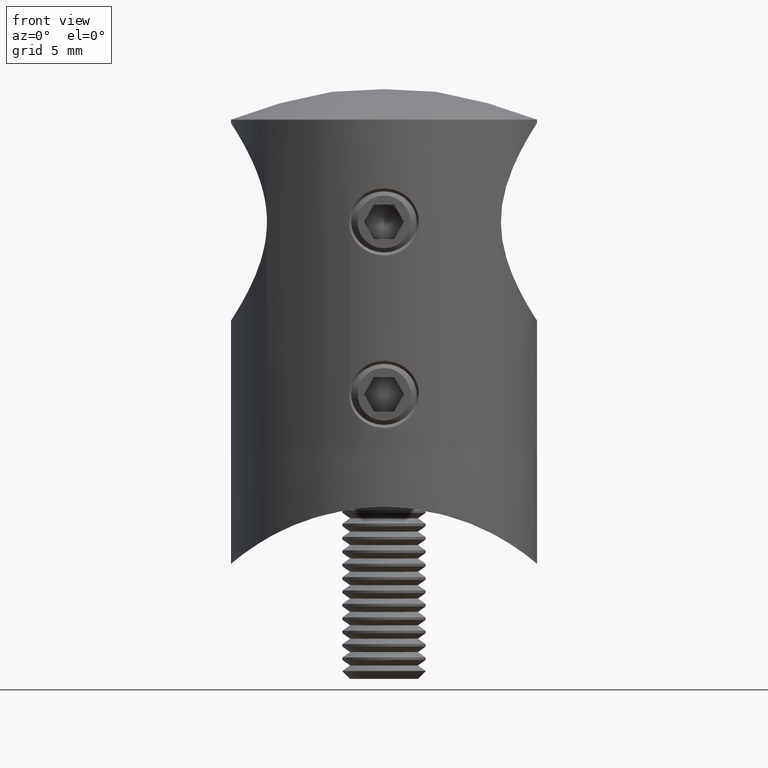
[diagram: clean part render]
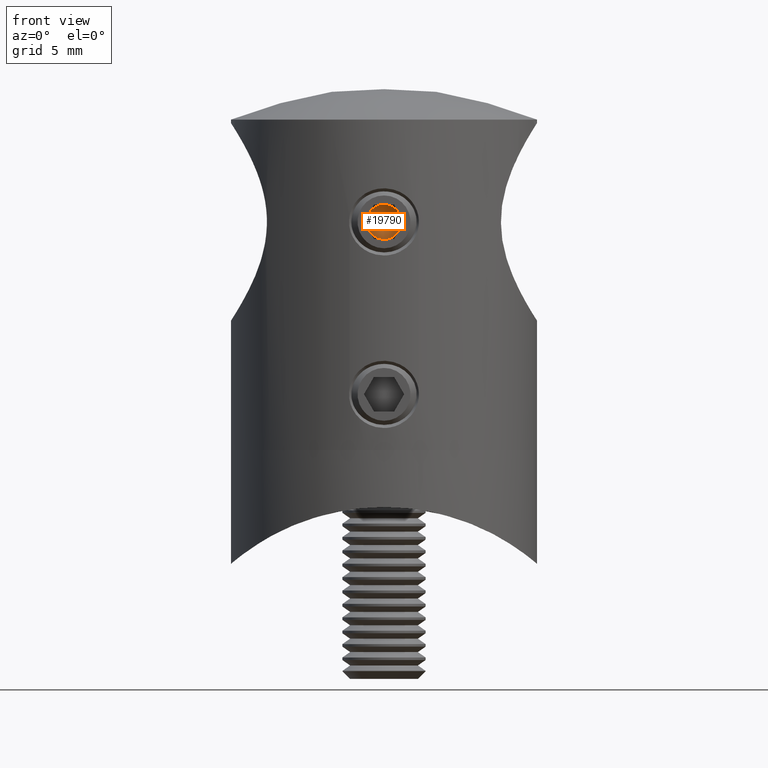
[diagram: same view with one face highlighted and labeled with its STEP entity id]
A machine part, front view. The second image highlights one B-rep face of the part: STEP entity #19790.
In plain terms, the highlighted conical surface has half-angle 59 deg.
Its self-contained STEP definition (entity closure, byte-faithful):
#340 = CARTESIAN_POINT ( 'NONE',  ( 2.000000000000000000, 0.0000000000000000000, 6.209410300080172700E-015 ) ) ;
#670 = VERTEX_POINT ( 'NONE', #22903 ) ;
#952 = VERTEX_POINT ( 'NONE', #16912 ) ;
#1208 = CARTESIAN_POINT ( 'NONE',  ( 2.000000000000001300, 0.0000000000000000000, 5.755839955992561400E-015 ) ) ;
#1278 = CARTESIAN_POINT ( 'NONE',  ( 2.000000000000000000, 0.0000000000000000000, 6.209410300080172700E-015 ) ) ;
#2049 = CARTESIAN_POINT ( 'NONE',  ( 2.000000000000000000, 0.0000000000000000000, 6.209410300080172700E-015 ) ) ;
#2118 = DIRECTION ( 'NONE',  ( -1.000000000000000000, -0.0000000000000000000, 0.0000000000000000000 ) ) ;
#2362 = VERTEX_POINT ( 'NONE', #7563 ) ;
#2527 = CONICAL_SURFACE ( 'NONE', #20865, 1.250000000000005300, 1.029744258676652800 ) ;
#3683 = CARTESIAN_POINT ( 'NONE',  ( 2.000000000000001300, 0.0000000000000000000, 5.755839955992561400E-015 ) ) ;
#3757 = DIRECTION ( 'NONE',  ( 1.000000000000000000, -0.0000000000000000000, 2.180260461768213300E-016 ) ) ;
#3867 = AXIS2_PLACEMENT_3D ( 'NONE', #1278, #10420, #8463 ) ;
#3913 = CARTESIAN_POINT ( 'NONE',  ( 2.000000000000000000, 0.0000000000000000000, 1.250000000000000200 ) ) ;
#3922 = CIRCLE ( 'NONE', #13006, 1.250000000000005300 ) ;
#4237 = ORIENTED_EDGE ( 'NONE', *, *, #4514, .F. ) ;
#4514 = EDGE_CURVE ( 'NONE', #952, #10585, #20561, .T. ) ;
#4644 = VERTEX_POINT ( 'NONE', #14393 ) ;
#5083 = DIRECTION ( 'NONE',  ( 1.000000000000000000, -0.0000000000000000000, 2.180260461768213300E-016 ) ) ;
#5662 = ORIENTED_EDGE ( 'NONE', *, *, #20380, .T. ) ;
#5779 = ORIENTED_EDGE ( 'NONE', *, *, #21839, .F. ) ;
#5787 = AXIS2_PLACEMENT_3D ( 'NONE', #17231, #13621, #15312 ) ;
#6056 = DIRECTION ( 'NONE',  ( -1.000000000000000000, -0.0000000000000000000, 0.0000000000000000000 ) ) ;
#6303 = EDGE_CURVE ( 'NONE', #670, #952, #12786, .T. ) ;
#6734 = EDGE_CURVE ( 'NONE', #2362, #4644, #20239, .T. ) ;
#7234 = DIRECTION ( 'NONE',  ( -1.000000000000000000, -0.0000000000000000000, 0.0000000000000000000 ) ) ;
#7563 = CARTESIAN_POINT ( 'NONE',  ( 2.000000000000001300, 1.082531754730552600, 0.6250000000000085500 ) ) ;
#7666 = CARTESIAN_POINT ( 'NONE',  ( 2.000000000000000000, 0.0000000000000000000, 6.209410300080172700E-015 ) ) ;
#8463 = DIRECTION ( 'NONE',  ( 0.0000000000000000000, 0.0000000000000000000, 1.000000000000000000 ) ) ;
#9973 = CIRCLE ( 'NONE', #18039, 1.250000000000002900 ) ;
#10420 = DIRECTION ( 'NONE',  ( -1.000000000000000000, -0.0000000000000000000, 0.0000000000000000000 ) ) ;
#10579 = FACE_OUTER_BOUND ( 'NONE', #19839, .T. ) ;
#10585 = VERTEX_POINT ( 'NONE', #3913 ) ;
#10791 = DIRECTION ( 'NONE',  ( 3.469446951953599400E-016, 0.0000000000000000000, -1.000000000000000000 ) ) ;
#11114 = AXIS2_PLACEMENT_3D ( 'NONE', #2049, #7234, #19760 ) ;
#12786 = CIRCLE ( 'NONE', #3867, 1.250000000000002900 ) ;
#12860 = DIRECTION ( 'NONE',  ( 0.0000000000000000000, 0.0000000000000000000, 1.000000000000000000 ) ) ;
#13006 = AXIS2_PLACEMENT_3D ( 'NONE', #3683, #3757, #10791 ) ;
#13621 = DIRECTION ( 'NONE',  ( -1.000000000000000000, -0.0000000000000000000, 0.0000000000000000000 ) ) ;
#13716 = ORIENTED_EDGE ( 'NONE', *, *, #6303, .F. ) ;
#14137 = CIRCLE ( 'NONE', #5787, 1.250000000000002900 ) ;
#14393 = CARTESIAN_POINT ( 'NONE',  ( 2.000000000000001300, 1.082531754730553100, -0.6249999999999965600 ) ) ;
#15037 = ORIENTED_EDGE ( 'NONE', *, *, #20550, .F. ) ;
#15312 = DIRECTION ( 'NONE',  ( 0.0000000000000000000, 0.0000000000000000000, 1.000000000000000000 ) ) ;
#16912 = CARTESIAN_POINT ( 'NONE',  ( 2.000000000000001300, -1.082531754730552600, 0.6250000000000086600 ) ) ;
#17231 = CARTESIAN_POINT ( 'NONE',  ( 2.000000000000000000, 0.0000000000000000000, 6.209410300080172700E-015 ) ) ;
#17834 = CARTESIAN_POINT ( 'NONE',  ( 2.000000000000001800, 3.755786496842908900E-016, -1.249999999999999300 ) ) ;
#18039 = AXIS2_PLACEMENT_3D ( 'NONE', #340, #2118, #12860 ) ;
#18185 = AXIS2_PLACEMENT_3D ( 'NONE', #7666, #6056, #21814 ) ;
#18622 = VERTEX_POINT ( 'NONE', #17834 ) ;
#18979 = DIRECTION ( 'NONE',  ( 3.469446951953599400E-016, 0.0000000000000000000, -1.000000000000000000 ) ) ;
#19760 = DIRECTION ( 'NONE',  ( 0.0000000000000000000, 0.0000000000000000000, 1.000000000000000000 ) ) ;
#19790 = ADVANCED_FACE ( 'NONE', ( #10579 ), #2527, .F. ) ;
#19839 = EDGE_LOOP ( 'NONE', ( #5662, #20392, #5779, #4237, #13716, #15037 ) ) ;
#20239 = CIRCLE ( 'NONE', #18185, 1.250000000000002900 ) ;
#20380 = EDGE_CURVE ( 'NONE', #18622, #4644, #3922, .T. ) ;
#20392 = ORIENTED_EDGE ( 'NONE', *, *, #6734, .F. ) ;
#20550 = EDGE_CURVE ( 'NONE', #18622, #670, #9973, .T. ) ;
#20561 = CIRCLE ( 'NONE', #11114, 1.250000000000002900 ) ;
#20865 = AXIS2_PLACEMENT_3D ( 'NONE', #1208, #5083, #18979 ) ;
#21814 = DIRECTION ( 'NONE',  ( 0.0000000000000000000, 0.0000000000000000000, 1.000000000000000000 ) ) ;
#21839 = EDGE_CURVE ( 'NONE', #10585, #2362, #14137, .T. ) ;
#22903 = CARTESIAN_POINT ( 'NONE',  ( 2.000000000000001300, -1.082531754730553300, -0.6249999999999958900 ) ) ;